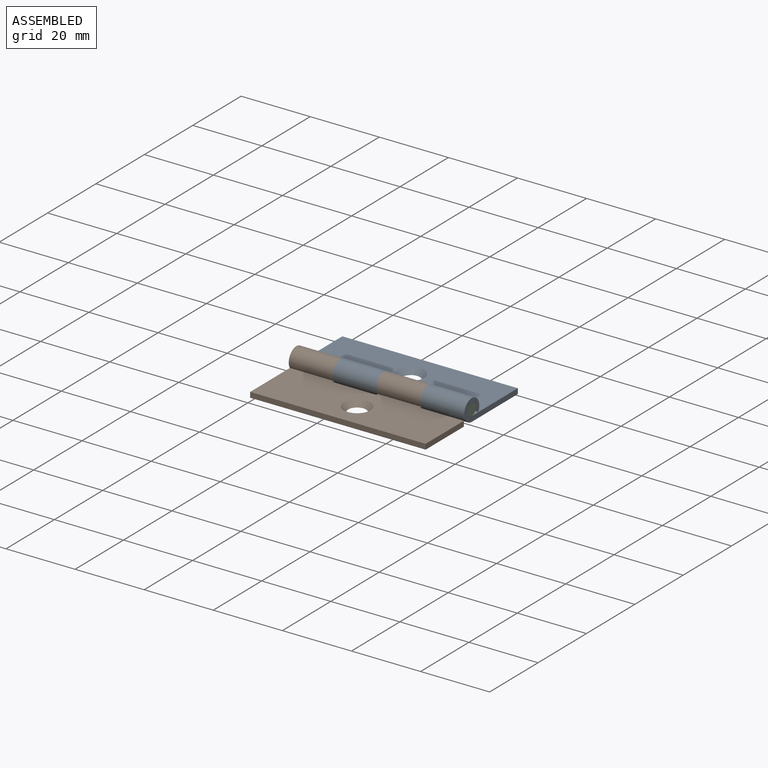
[diagram: assembled view]
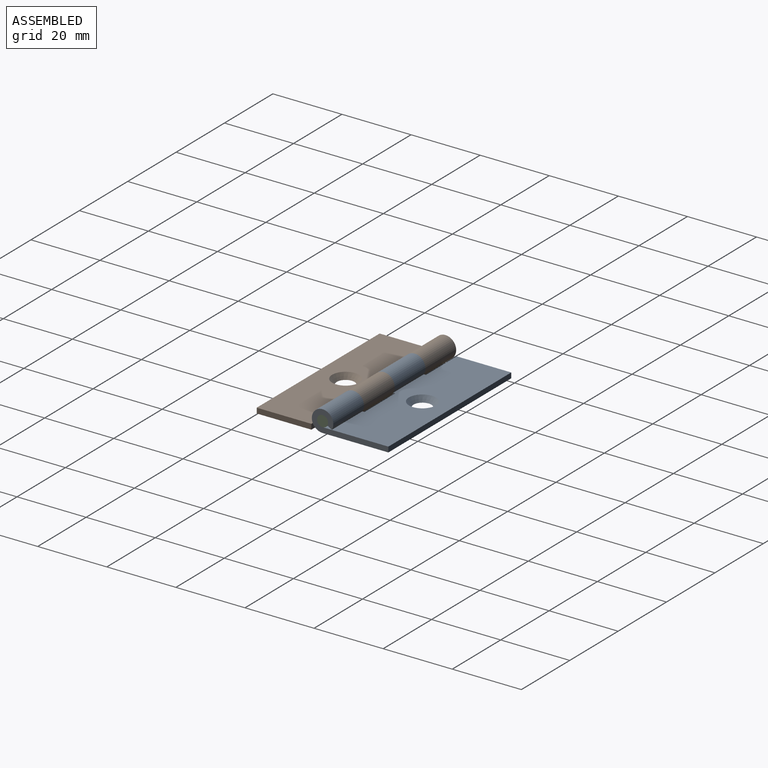
[diagram: assembled view, second angle]
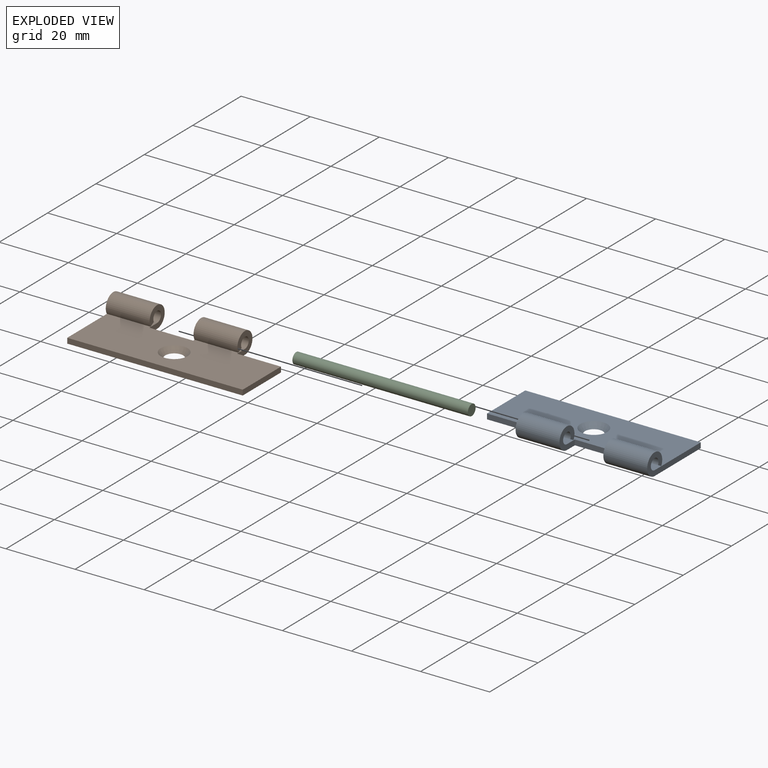
[diagram: exploded view]
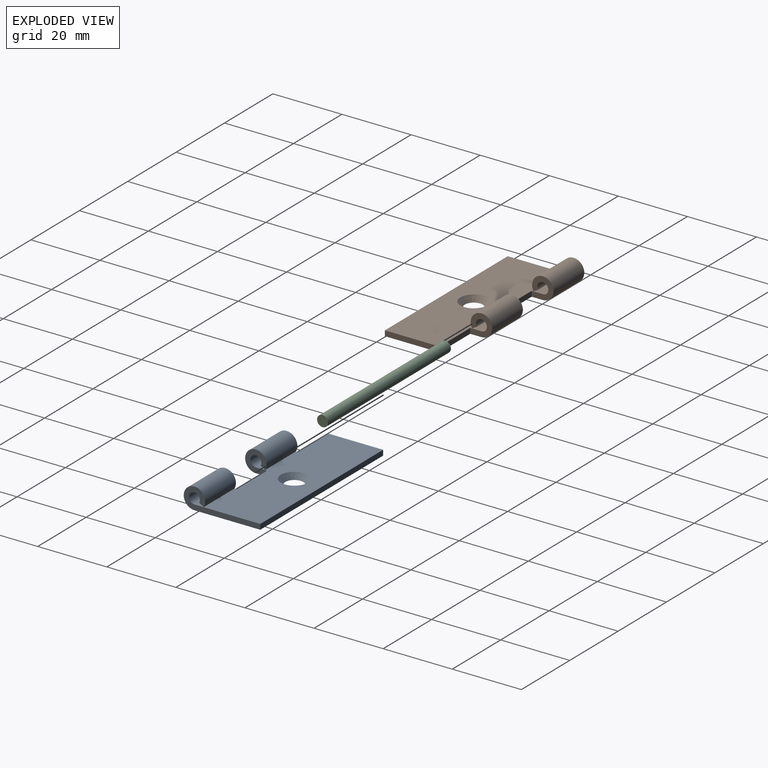
[diagram: exploded view, second angle]
ASSEMBLY  parts=3 mates=2
PART A: 17 faces, bbox 50.8x22.2x6.2 mm
  f0: cylinder r=1.59mm len=12.7mm, axis (-1,0,0), area 105.5mm2, adj f2,f5,f11,f15
  f1: cylinder r=3.11mm len=12.7mm, axis (-1,0,0), area 206.7mm2, adj f2,f7,f11,f15
  f2: plane 12.7x1.32mm, normal (0,0.5,-0.87), area 19.4mm2, adj f0,f1,f11,f15
  f3: plane 15.81x1.52mm, normal (1,0,0), area 24.1mm2, adj f5,f6,f7,f12
  f4: cylinder r=1.59mm len=12.7mm, axis (-1,0,0), area 105.5mm2, adj f5,f9,f10,f14
  f5: plane 50.8x19.05mm, normal (0,0,1), area 837.7mm2, adj f0,f3,f4,f6,f10,f11,f12,f13
  f6: plane 50.8x1.52mm, normal (0,-1,0), area 77.4mm2, adj f3,f5,f7,f10
  f7: plane 50.8x19.05mm, normal (0,0,-1), area 864.7mm2, adj f1,f3,f6,f8,f10,f11,f12,f13
  f8: cylinder r=3.11mm len=12.7mm, axis (-1,0,0), area 206.7mm2, adj f7,f9,f10,f14
  f9: plane 12.7x1.32mm, normal (0,0.5,-0.87), area 19.4mm2, adj f4,f8,f10,f14
  f10: plane 22.16x6.22mm, normal (-1,0,0), area 47.8mm2, adj f4,f5,f6,f7,f8,f9
  f11: plane 6.35x6.22mm, normal (1,0,0), area 23.7mm2, adj f0,f1,f2,f5,f7,f12
  f12: plane 12.7x1.52mm, normal (0,1,0), area 19.4mm2, adj f3,f5,f7,f11
  f13: plane 12.7x1.52mm, normal (0,1,0), area 19.4mm2, adj f5,f7,f14,f15
  f14: plane 6.35x6.22mm, normal (1,0,0), area 23.7mm2, adj f4,f5,f7,f8,f9,f13
  f15: plane 6.35x6.22mm, normal (-1,0,0), area 23.7mm2, adj f0,f1,f2,f5,f7,f13
  f16: cone r=1.83mm half-angle=41deg, axis (0,0,1), area 41.1mm2, adj f5,f7
PART B: same geometry as A
PART C: 3 faces, bbox 50.8x3.2x3.2 mm
  f0: plane 3.18x3.18mm, normal (1,0,0), area 7.9mm2, adj f1
  f1: cylinder r=1.59mm len=50.8mm, axis (-1,0,0), area 506.7mm2, adj f0,f2
  f2: plane 3.18x3.18mm, normal (-1,0,0), area 7.9mm2, adj f1
PLACE A rot(axis=(0,0,1),180deg) t=(50.8,0,0)mm
PLACE B at identity
PLACE C rot(axis=(1,0,0),0deg) t=(0,0,0)mm
MATE revolute B.f1 <-> C.f1  axis (-1,0,0) through (0,0,0)mm
MATE revolute A.f1 <-> C.f1  axis (1,0,0) through (50.8,0,0)mm
